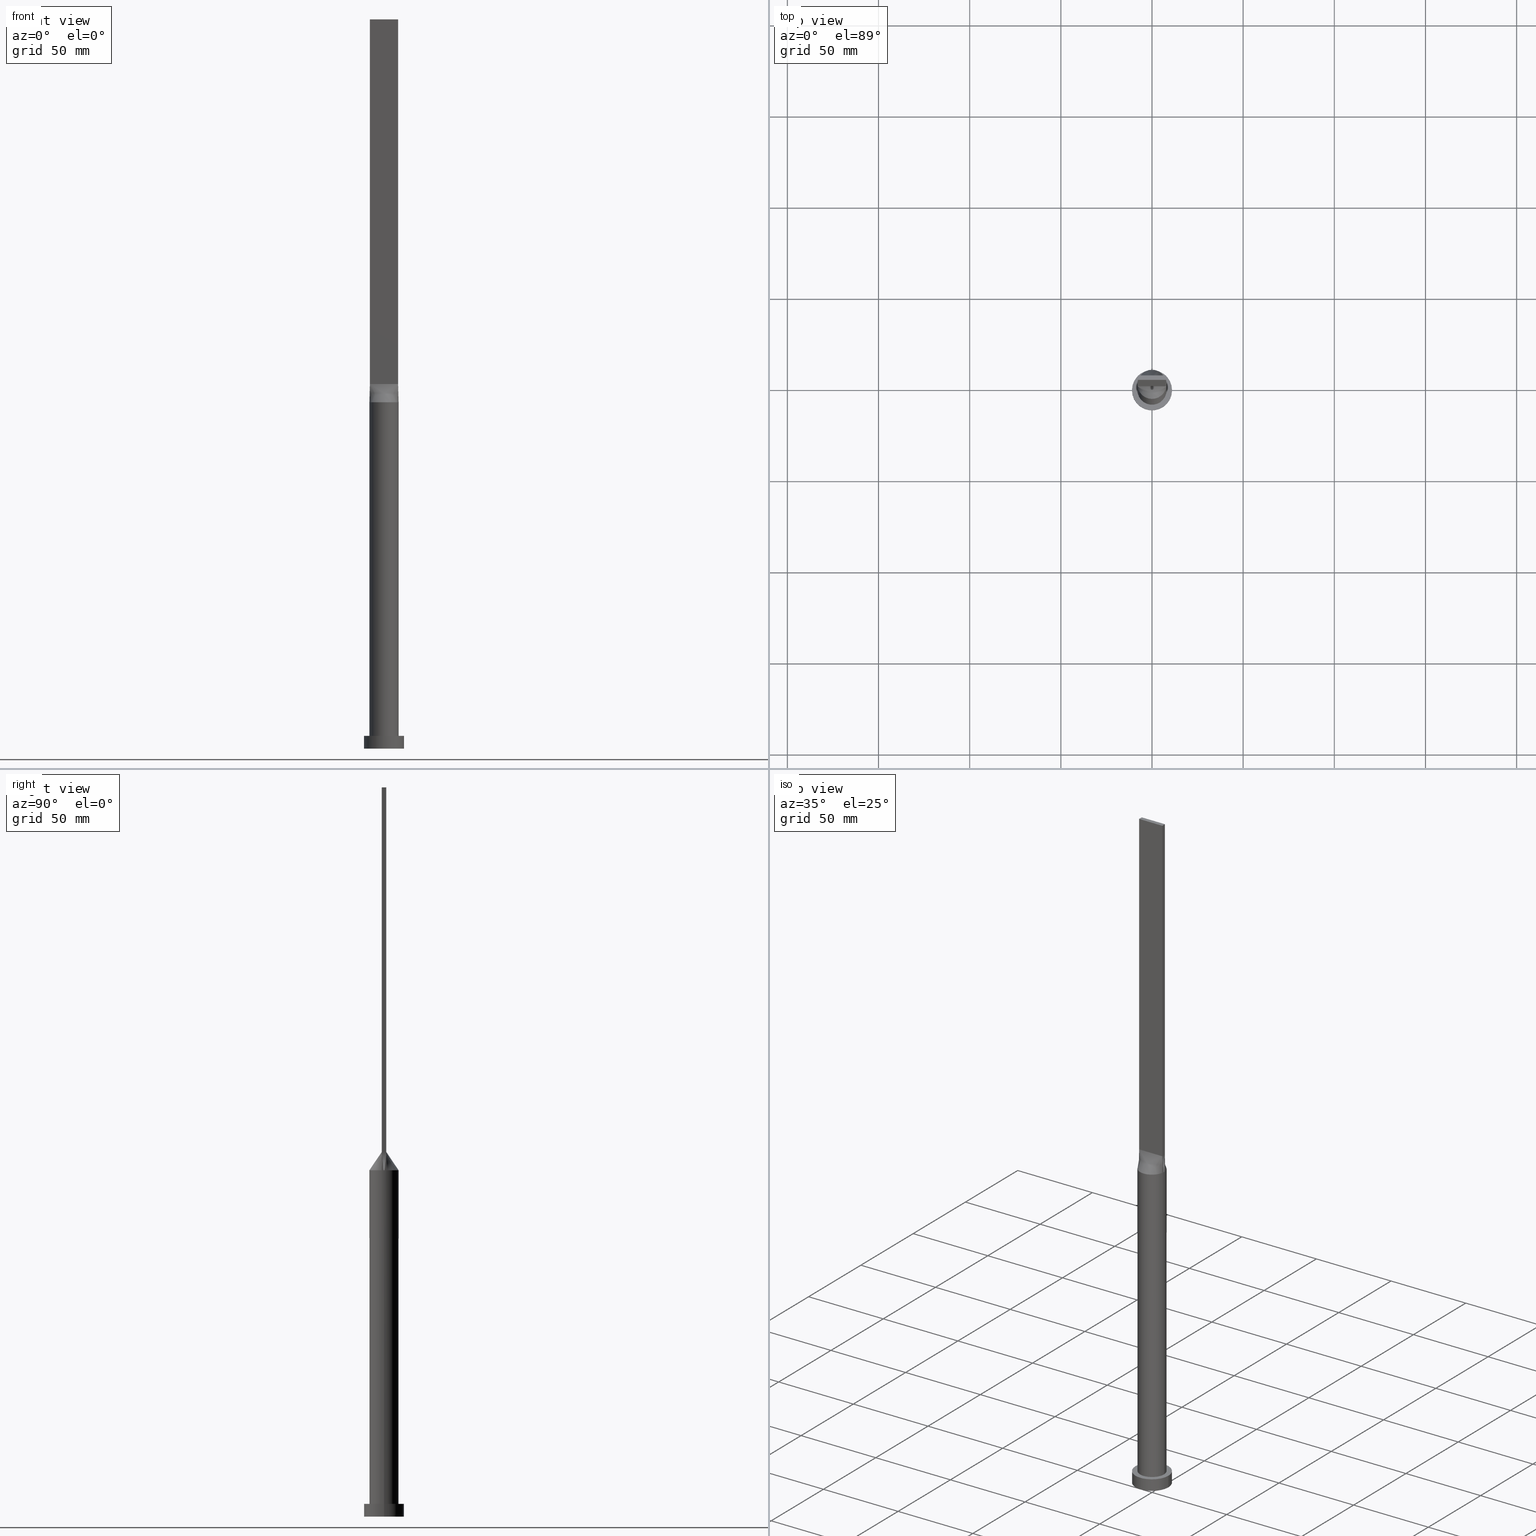
[diagram: canonical four-view strip — front | top / right | iso, engineering-drawing reading convention]
A machine part, canonical four-view strip (front | top / right | iso — engineering-drawing reading convention). The complete STEP part file that produces these views, byte-faithful:
ISO-10303-21;
HEADER;
FILE_DESCRIPTION (( 'STEP AP203' ),
    '1' );
FILE_NAME ('b073.STEP',
    '2023-02-13T08:47:54',
    ( '' ),
    ( '' ),
    'SwSTEP 2.0',
    'SolidWorks 2019',
    '' );
FILE_SCHEMA (( 'CONFIG_CONTROL_DESIGN' ));
ENDSEC;

DATA;
#1 = DIRECTION ( 'NONE',  ( 0.000000000000000000, 0.000000000000000000, 1.000000000000000000 ) ) ;
#2 = CARTESIAN_POINT ( 'NONE',  ( 7.750000000000000000, 0.8333333333333321491, 200.0000000000000000 ) ) ;
#3 = CARTESIAN_POINT ( 'NONE',  ( 8.000000000000000000, 9.797174393178825657E-16, 190.0000000000000000 ) ) ;
#4 = ORIENTED_EDGE ( 'NONE', *, *, #300, .F. ) ;
#5 = CARTESIAN_POINT ( 'NONE',  ( 7.750000000000000000, -1.249999999999999778, 200.0000000000000000 ) ) ;
#6 = ORGANIZATION ( 'NEUR�EN�', 'NEUR�EN�', '' ) ;
#7 = PLANE ( 'NONE',  #574 ) ;
#8 = CARTESIAN_POINT ( 'NONE',  ( -11.00000000000000000, 0.000000000000000000, 0.000000000000000000 ) ) ;
#9 = CC_DESIGN_PERSON_AND_ORGANIZATION_ASSIGNMENT ( #498, #637, ( #45 ) ) ;
#10 = ORIENTED_EDGE ( 'NONE', *, *, #449, .T. ) ;
#11 = VECTOR ( 'NONE', #56, 1000.000000000000227 ) ;
#12 = CARTESIAN_POINT ( 'NONE',  ( -6.458333333333333037, -1.249999999999998890, 200.0000000000000000 ) ) ;
#13 = CIRCLE ( 'NONE', #484, 11.00000000000000000 ) ;
#14 = EDGE_LOOP ( 'NONE', ( #358, #65, #610, #318 ) ) ;
#15 = CARTESIAN_POINT ( 'NONE',  ( -0.6458333333333330373, -1.249999999999999112, 200.0000000000000000 ) ) ;
#16 = ORIENTED_EDGE ( 'NONE', *, *, #263, .T. ) ;
#17 = CARTESIAN_POINT ( 'NONE',  ( 4.217034177653714799, 6.817775467282659818, 189.9999999999999716 ) ) ;
#18 = ORIENTED_EDGE ( 'NONE', *, *, #86, .T. ) ;
#19 = B_SPLINE_CURVE_WITH_KNOTS ( 'NONE', 3,
 ( #309, #627, #313, #260, #128, #183, #77, #70, #468, #17, #480, #378, #28, #382, #617, #222, #522, #212, #264, #22, #624, #216, #418, #370, #316, #196, #48, #343, #391, #443 ),
 .UNSPECIFIED., .F., .F.,
 ( 4, 2, 2, 2, 2, 2, 2, 2, 2, 2, 2, 2, 2, 2, 4 ),
 ( 0.000000000000000000, 0.1250000000000000000, 0.1875000000000000000, 0.2500000000000000000, 0.3125000000000000000, 0.3750000000000000000, 0.4375000000000000000, 0.5000000000000000000, 0.5625000000000000000, 0.6250000000000000000, 0.6875000000000000000, 0.7500000000000000000, 0.8125000000000000000, 0.8750000000000000000, 1.000000000000000000 ),
 .UNSPECIFIED. ) ;
#20 = DIRECTION ( 'NONE',  ( -0.01479123618026849905, -0.002385683254881877744, 0.9998877576246579801 ) ) ;
#21 = CLOSED_SHELL ( 'NONE', ( #427, #163, #410, #295, #107, #118, #587, #577, #621, #513, #292, #121, #611, #172, #345 ) ) ;
#22 = CARTESIAN_POINT ( 'NONE',  ( -3.754841939107308235, 7.084924699190308317, 189.9999999999999716 ) ) ;
#23 = VERTEX_POINT ( 'NONE', #130 ) ;
#24 = CARTESIAN_POINT ( 'NONE',  ( -7.750000000000000000, -0.4166666666666646868, 200.0000000000000000 ) ) ;
#25 = LINE ( 'NONE', #531, #605 ) ;
#26 = EDGE_LOOP ( 'NONE', ( #265, #361, #161, #630, #455, #367 ) ) ;
#27 = DIRECTION ( 'NONE',  ( 5.595882180570345426E-17, 1.000000000000000000, -0.000000000000000000 ) ) ;
#28 = CARTESIAN_POINT ( 'NONE',  ( 2.232993174580878204, 7.702525839322459156, 190.0000000000000568 ) ) ;
#29 = ORIENTED_EDGE ( 'NONE', *, *, #497, .T. ) ;
#30 = CARTESIAN_POINT ( 'NONE',  ( 5.166666666666668739, -1.249999999999999778, 200.0000000000000568 ) ) ;
#31 = LINE ( 'NONE', #373, #474 ) ;
#32 = CIRCLE ( 'NONE', #546, 8.000000000000000000 ) ;
#33 = EDGE_LOOP ( 'NONE', ( #434, #523, #618, #492, #53 ) ) ;
#34 = COORDINATED_UNIVERSAL_TIME_OFFSET ( 1, 0, .AHEAD. ) ;
#35 = CARTESIAN_POINT ( 'NONE',  ( -2.762781956618985291, 7.527418670504290255, 190.0000000000000284 ) ) ;
#36 = DIRECTION ( 'NONE',  ( -0.000000000000000000, -0.000000000000000000, -1.000000000000000000 ) ) ;
#37 = APPROVAL_STATUS ( 'not_yet_approved' ) ;
#38 = CARTESIAN_POINT ( 'NONE',  ( -7.897940634034629426, -1.273861398824698732, 190.0000000000000000 ) ) ;
#39 = LINE ( 'NONE', #383, #596 ) ;
#40 = CALENDAR_DATE ( 2023, 13, 2 ) ;
#41 = CARTESIAN_POINT ( 'NONE',  ( 1.614583333333327264, 1.250000000000000222, 200.0000000000000000 ) ) ;
#42 = LINE ( 'NONE', #296, #224 ) ;
#43 = PERSON_AND_ORGANIZATION_ROLE ( 'creator' ) ;
#44 = CARTESIAN_POINT ( 'NONE',  ( -5.434261125067506804, 5.890653037160105576, 190.0000000000000284 ) ) ;
#45 = PRODUCT_DEFINITION ( 'NEZN�M�', '', #151, #397 ) ;
#46 = FACE_OUTER_BOUND ( 'NONE', #122, .T. ) ;
#47 = ORIENTED_EDGE ( 'NONE', *, *, #355, .T. ) ;
#48 = CARTESIAN_POINT ( 'NONE',  ( -7.088837466865208548, 3.729743859143727747, 190.0000000000000284 ) ) ;
#49 = CARTESIAN_POINT ( 'NONE',  ( 0.000000000000000000, 0.000000000000000000, 7.000000000000000000 ) ) ;
#50 = ORIENTED_EDGE ( 'NONE', *, *, #155, .T. ) ;
#51 = CARTESIAN_POINT ( 'NONE',  ( -6.883287261198673512, -4.100742229440781372, 190.0000000000000853 ) ) ;
#52 = CARTESIAN_POINT ( 'NONE',  ( 11.00000000000000000, 1.347111479062088405E-15, 7.000000000000000000 ) ) ;
#53 = ORIENTED_EDGE ( 'NONE', *, *, #263, .F. ) ;
#54 = AXIS2_PLACEMENT_3D ( 'NONE', #225, #66, #423 ) ;
#55 = CARTESIAN_POINT ( 'NONE',  ( -7.897928965701177084, -1.273859510596962119, 190.0000000000000000 ) ) ;
#56 = DIRECTION ( 'NONE',  ( 0.01479123618026849905, -0.002385683254881834810, 0.9998877576246579801 ) ) ;
#57 = ORIENTED_EDGE ( 'NONE', *, *, #236, .T. ) ;
#58 = CARTESIAN_POINT ( 'NONE',  ( -7.088837466865212988, -3.729743859143725526, 190.0000000000000853 ) ) ;
#59 = APPROVAL_PERSON_ORGANIZATION ( #631, #433, #339 ) ;
#60 = CARTESIAN_POINT ( 'NONE',  ( 7.750000000000000000, -0.4166666666666684060, 200.0000000000000000 ) ) ;
#61 = VERTEX_POINT ( 'NONE', #78 ) ;
#62 = AXIS2_PLACEMENT_3D ( 'NONE', #582, #286, #176 ) ;
#63 = CARTESIAN_POINT ( 'NONE',  ( -4.217034177653715687, -6.817775467282659818, 189.9999999999999716 ) ) ;
#64 = EDGE_CURVE ( 'NONE', #579, #628, #206, .T. ) ;
#65 = ORIENTED_EDGE ( 'NONE', *, *, #566, .F. ) ;
#66 = DIRECTION ( 'NONE',  ( 0.000000000000000000, 0.000000000000000000, 1.000000000000000000 ) ) ;
#67 = APPROVAL_PERSON_ORGANIZATION ( #185, #632, #277 ) ;
#68 = ORIENTED_EDGE ( 'NONE', *, *, #379, .F. ) ;
#69 = CARTESIAN_POINT ( 'NONE',  ( -7.750000000000000000, 1.250000000000000222, 200.0000000000000000 ) ) ;
#70 = CARTESIAN_POINT ( 'NONE',  ( 5.434261125067508580, 5.890653037160103800, 190.0000000000000284 ) ) ;
#71 = ORIENTED_EDGE ( 'NONE', *, *, #335, .T. ) ;
#72 = CARTESIAN_POINT ( 'NONE',  ( -7.999348843997323044, 0.4273286734864477077, 190.0000000000000000 ) ) ;
#73 = VECTOR ( 'NONE', #98, 1000.000000000000000 ) ;
#74 = DIRECTION ( 'NONE',  ( -0.000000000000000000, -0.000000000000000000, -1.000000000000000000 ) ) ;
#75 = ORIENTED_EDGE ( 'NONE', *, *, #608, .F. ) ;
#76 = CARTESIAN_POINT ( 'NONE',  ( 7.897928965701177084, -1.273859510596963451, 190.0000000000000000 ) ) ;
#77 = CARTESIAN_POINT ( 'NONE',  ( 6.100409024666552327, 5.197691498289451317, 190.0000000000000284 ) ) ;
#78 = CARTESIAN_POINT ( 'NONE',  ( 7.750000000000000000, -1.249999999999999778, 200.0000000000000000 ) ) ;
#79 = CARTESIAN_POINT ( 'NONE',  ( 7.104166666666667851, -1.249999999999999778, 200.0000000000000000 ) ) ;
#80 = EDGE_CURVE ( 'NONE', #258, #504, #584, .T. ) ;
#81 = DIRECTION ( 'NONE',  ( -1.000000000000000000, 0.000000000000000000, 0.000000000000000000 ) ) ;
#82 = FACE_OUTER_BOUND ( 'NONE', #564, .T. ) ;
#83 = CARTESIAN_POINT ( 'NONE',  ( 3.552083333333327708, 1.250000000000000222, 200.0000000000000284 ) ) ;
#84 = CIRCLE ( 'NONE', #54, 8.000000000000000000 ) ;
#85 = DIRECTION ( 'NONE',  ( 0.000000000000000000, 0.000000000000000000, 1.000000000000000000 ) ) ;
#86 = EDGE_CURVE ( 'NONE', #220, #23, #39, .T. ) ;
#87 = CARTESIAN_POINT ( 'NONE',  ( 7.597511974649646227, 2.632154125590748350, 190.0000000000000000 ) ) ;
#88 = CARTESIAN_POINT ( 'NONE',  ( 0.000000000000000000, 0.000000000000000000, 190.0000000000000000 ) ) ;
#89 = LOCAL_TIME ( 9, 47, 54.00000000000000000, #235 ) ;
#90 = CARTESIAN_POINT ( 'NONE',  ( 0.3229166666666602459, 1.250000000000000444, 200.0000000000000000 ) ) ;
#91 = CARTESIAN_POINT ( 'NONE',  ( -7.750000000000000000, 1.250000000000000222, 400.0000000000000000 ) ) ;
#92 = PERSON_AND_ORGANIZATION ( #304, #6 ) ;
#93 = CARTESIAN_POINT ( 'NONE',  ( 6.458333333333331261, 1.250000000000000222, 200.0000000000000000 ) ) ;
#94 = CARTESIAN_POINT ( 'NONE',  ( 7.897952327758385849, -1.273863293446191536, 190.0000000000000000 ) ) ;
#95 = CIRCLE ( 'NONE', #489, 8.000000000000000000 ) ;
#96 = COORDINATED_UNIVERSAL_TIME_OFFSET ( 1, 0, .AHEAD. ) ;
#97 = CARTESIAN_POINT ( 'NONE',  ( 5.056714967162550423, 6.220536417275850383, 190.0000000000000284 ) ) ;
#98 = DIRECTION ( 'NONE',  ( 1.000000000000000000, -5.595882180570345426E-17, 0.000000000000000000 ) ) ;
#99 = ORIENTED_EDGE ( 'NONE', *, *, #153, .T. ) ;
#100 = CARTESIAN_POINT ( 'NONE',  ( -2.260416666666666519, -1.249999999999999112, 200.0000000000000000 ) ) ;
#101 = DIRECTION ( 'NONE',  ( 0.000000000000000000, 0.000000000000000000, 1.000000000000000000 ) ) ;
#102 = EDGE_CURVE ( 'NONE', #529, #371, #376, .T. ) ;
#103 = VERTEX_POINT ( 'NONE', #184 ) ;
#104 = CARTESIAN_POINT ( 'NONE',  ( -5.434261125067508580, -5.890653037160103800, 190.0000000000000284 ) ) ;
#105 = LINE ( 'NONE', #249, #509 ) ;
#106 = CARTESIAN_POINT ( 'NONE',  ( -1.135368687448996994, -7.938897956688654389, 190.0000000000000284 ) ) ;
#107 = ADVANCED_FACE ( 'NONE', ( #441 ), #274, .F. ) ;
#108 = CARTESIAN_POINT ( 'NONE',  ( 7.965542217898607724, 0.8546573469728929728, 190.0000000000000000 ) ) ;
#109 = ORIENTED_EDGE ( 'NONE', *, *, #392, .F. ) ;
#110 = CARTESIAN_POINT ( 'NONE',  ( -4.197916666666666963, -1.249999999999998890, 200.0000000000000284 ) ) ;
#111 = ORIENTED_EDGE ( 'NONE', *, *, #422, .F. ) ;
#112 = VECTOR ( 'NONE', #553, 1000.000000000000000 ) ;
#113 = DIRECTION ( 'NONE',  ( 1.000000000000000000, 0.000000000000000000, 0.000000000000000000 ) ) ;
#114 = ORIENTED_EDGE ( 'NONE', *, *, #64, .F. ) ;
#115 = CARTESIAN_POINT ( 'NONE',  ( 0.000000000000000000, 0.000000000000000000, 0.000000000000000000 ) ) ;
#116 = CARTESIAN_POINT ( 'NONE',  ( 7.750000000000000000, 1.250000000000000222, 400.0000000000000000 ) ) ;
#117 = VERTEX_POINT ( 'NONE', #622 ) ;
#118 = ADVANCED_FACE ( 'NONE', ( #82 ), #187, .T. ) ;
#119 = LINE ( 'NONE', #425, #312 ) ;
#120 = DIRECTION ( 'NONE',  ( 1.000000000000000000, 0.000000000000000000, 0.000000000000000000 ) ) ;
#121 = ADVANCED_FACE ( 'NONE', ( #338 ), #134, .F. ) ;
#122 = EDGE_LOOP ( 'NONE', ( #261, #413, #57, #18 ) ) ;
#123 = CARTESIAN_POINT ( 'NONE',  ( 7.088837466865208548, -3.729743859143727747, 190.0000000000000284 ) ) ;
#124 = DIRECTION ( 'NONE',  ( -0.01479123618026849905, 0.002385683254881964914, 0.9998877576246579801 ) ) ;
#125 = EDGE_CURVE ( 'NONE', #371, #326, #481, .T. ) ;
#126 = DIRECTION ( 'NONE',  ( 1.000000000000000000, 0.000000000000000000, 0.000000000000000000 ) ) ;
#127 = CARTESIAN_POINT ( 'NONE',  ( 2.260416666666666519, -1.249999999999999334, 200.0000000000000284 ) ) ;
#128 = CARTESIAN_POINT ( 'NONE',  ( 6.883287261198673512, 4.100742229440780484, 190.0000000000000853 ) ) ;
#129 = B_SPLINE_SURFACE_WITH_KNOTS ( 'NONE', 3, 1, ( 
 ( #347, #5 ),
 ( #254, #350 ),
 ( #409, #60 ),
 ( #560, #460 ),
 ( #108, #2 ),
 ( #306, #597 ) ),
 .UNSPECIFIED., .F., .F., .F.,
 ( 4, 2, 4 ),
 ( 2, 2 ),
 ( 0.000000000000000000, 0.5000000000000000000, 1.000000000000000000 ),
 ( 0.000000000000000000, 1.000000000000000000 ),
 .UNSPECIFIED. ) ;
#130 = CARTESIAN_POINT ( 'NONE',  ( 7.750000000000000000, 1.250000000000000222, 400.0000000000000000 ) ) ;
#131 = PERSON_AND_ORGANIZATION_ROLE ( 'classification_officer' ) ;
#132 = CC_DESIGN_DATE_AND_TIME_ASSIGNMENT ( #589, #228, ( #337 ) ) ;
#133 = CARTESIAN_POINT ( 'NONE',  ( 2.583333333333327264, 1.250000000000000222, 200.0000000000000000 ) ) ;
#134 = PLANE ( 'NONE',  #473 ) ;
#135 = MECHANICAL_CONTEXT ( 'NONE', #469, 'mechanical' ) ;
#136 = CARTESIAN_POINT ( 'NONE',  ( -6.389139692789916225, 4.834731051311460526, 190.0000000000000568 ) ) ;
#137 = CARTESIAN_POINT ( 'NONE',  ( 0.000000000000000000, 0.000000000000000000, 7.000000000000000000 ) ) ;
#138 = CARTESIAN_POINT ( 'NONE',  ( 2.260416666666660745, 1.250000000000000222, 200.0000000000000000 ) ) ;
#139 = DIRECTION ( 'NONE',  ( 1.000000000000000000, 0.000000000000000000, 0.000000000000000000 ) ) ;
#140 = LOCAL_TIME ( 9, 47, 54.00000000000000000, #96 ) ;
#141 = CARTESIAN_POINT ( 'NONE',  ( 3.229166666666661190, 1.250000000000000222, 200.0000000000000000 ) ) ;
#142 = LINE ( 'NONE', #447, #363 ) ;
#143 = DATE_AND_TIME ( #381, #89 ) ;
#144 = CARTESIAN_POINT ( 'NONE',  ( 7.897928965701177084, 1.273859510596963451, 190.0000000000000000 ) ) ;
#145 = DIRECTION ( 'NONE',  ( -0.000000000000000000, -0.000000000000000000, -1.000000000000000000 ) ) ;
#146 = AXIS2_PLACEMENT_3D ( 'NONE', #567, #74, #483 ) ;
#147 = ORIENTED_EDGE ( 'NONE', *, *, #353, .T. ) ;
#148 = CARTESIAN_POINT ( 'NONE',  ( -2.583333333333333481, -1.249999999999998890, 200.0000000000000000 ) ) ;
#149 = DIRECTION ( 'NONE',  ( 1.000000000000000000, 0.000000000000000000, -0.000000000000000000 ) ) ;
#150 = VERTEX_POINT ( 'NONE', #231 ) ;
#151 = PRODUCT_DEFINITION_FORMATION_WITH_SPECIFIED_SOURCE ( 'LIBOVOLN�', '', #639, .NOT_KNOWN. ) ;
#152 = CARTESIAN_POINT ( 'NONE',  ( -4.520833333333333037, -1.249999999999998890, 200.0000000000000000 ) ) ;
#153 = EDGE_CURVE ( 'NONE', #308, #207, #429, .T. ) ;
#154 = LINE ( 'NONE', #52, #487 ) ;
#155 = EDGE_CURVE ( 'NONE', #628, #579, #430, .T. ) ;
#156 = EDGE_LOOP ( 'NONE', ( #211, #71, #606, #109, #364 ) ) ;
#157 = CARTESIAN_POINT ( 'NONE',  ( 1.135368687448994107, -7.938897956688654389, 190.0000000000000853 ) ) ;
#158 = DIRECTION ( 'NONE',  ( 1.000000000000000000, 0.000000000000000000, -0.000000000000000000 ) ) ;
#159 = CARTESIAN_POINT ( 'NONE',  ( -7.793128424795161102, 1.923622864214273198, 190.0000000000000284 ) ) ;
#160 = CC_DESIGN_PERSON_AND_ORGANIZATION_ASSIGNMENT ( #282, #131, ( #337 ) ) ;
#161 = ORIENTED_EDGE ( 'NONE', *, *, #323, .T. ) ;
#162 = FACE_OUTER_BOUND ( 'NONE', #310, .T. ) ;
#163 = ADVANCED_FACE ( 'NONE', ( #438 ), #535, .T. ) ;
#164 = ORIENTED_EDGE ( 'NONE', *, *, #300, .T. ) ;
#165 = CARTESIAN_POINT ( 'NONE',  ( 11.00000000000000000, 1.347111479062088405E-15, 0.000000000000000000 ) ) ;
#166 = ORIENTED_EDGE ( 'NONE', *, *, #463, .F. ) ;
#167 = VECTOR ( 'NONE', #124, 1000.000000000000227 ) ;
#168 = FACE_OUTER_BOUND ( 'NONE', #394, .T. ) ;
#169 = EDGE_LOOP ( 'NONE', ( #609, #568, #419, #475 ) ) ;
#170 = CARTESIAN_POINT ( 'NONE',  ( 4.520833333333333925, -1.249999999999999778, 200.0000000000000568 ) ) ;
#171 = LINE ( 'NONE', #116, #536 ) ;
#172 = ADVANCED_FACE ( 'NONE', ( #234 ), #7, .F. ) ;
#173 = VERTEX_POINT ( 'NONE', #94 ) ;
#174 = CARTESIAN_POINT ( 'NONE',  ( 5.056714967162549534, -6.220536417275852159, 189.9999999999999716 ) ) ;
#175 = CYLINDRICAL_SURFACE ( 'NONE', #200, 8.000000000000000000 ) ;
#176 = DIRECTION ( 'NONE',  ( -1.000000000000000000, 0.000000000000000000, 0.000000000000000000 ) ) ;
#177 = CARTESIAN_POINT ( 'NONE',  ( 4.197916666666667851, -1.249999999999999778, 200.0000000000000568 ) ) ;
#178 = AXIS2_PLACEMENT_3D ( 'NONE', #49, #555, #113 ) ;
#179 = CARTESIAN_POINT ( 'NONE',  ( -7.750000000000000000, 1.250000000000000222, 400.0000000000000000 ) ) ;
#180 = CC_DESIGN_DATE_AND_TIME_ASSIGNMENT ( #195, #626, ( #45 ) ) ;
#181 = CARTESIAN_POINT ( 'NONE',  ( 0.000000000000000000, 0.000000000000000000, 0.000000000000000000 ) ) ;
#182 = APPROVAL_DATE_TIME ( #331, #632 ) ;
#183 = CARTESIAN_POINT ( 'NONE',  ( 6.389139692789920666, 4.834731051311459638, 190.0000000000000853 ) ) ;
#184 = CARTESIAN_POINT ( 'NONE',  ( -11.00000000000000000, 0.000000000000000000, 7.000000000000000000 ) ) ;
#185 = PERSON_AND_ORGANIZATION ( #304, #6 ) ;
#186 = CARTESIAN_POINT ( 'NONE',  ( 4.520833333333327708, 1.250000000000000222, 200.0000000000000000 ) ) ;
#187 = CYLINDRICAL_SURFACE ( 'NONE', #62, 8.000000000000000000 ) ;
#188 = SHAPE_DEFINITION_REPRESENTATION ( #428, #573 ) ;
#189 = CARTESIAN_POINT ( 'NONE',  ( 2.232993174580878204, 7.702525839322459156, 190.0000000000000568 ) ) ;
#190 = VECTOR ( 'NONE', #625, 1000.000000000000000 ) ;
#191 = ORIENTED_EDGE ( 'NONE', *, *, #272, .F. ) ;
#192 = PERSON_AND_ORGANIZATION ( #304, #6 ) ;
#193 = CARTESIAN_POINT ( 'NONE',  ( -0.6458333333333395876, 1.250000000000000222, 200.0000000000000000 ) ) ;
#194 = CARTESIAN_POINT ( 'NONE',  ( 0.000000000000000000, 0.000000000000000000, 400.0000000000000000 ) ) ;
#195 = DATE_AND_TIME ( #431, #140 ) ;
#196 = CARTESIAN_POINT ( 'NONE',  ( -6.883287261198669960, 4.100742229440782260, 190.0000000000000568 ) ) ;
#197 = LINE ( 'NONE', #544, #112 ) ;
#198 = CARTESIAN_POINT ( 'NONE',  ( -7.088837466865208548, 3.729743859143727747, 190.0000000000000284 ) ) ;
#199 = DIRECTION ( 'NONE',  ( -0.000000000000000000, -0.000000000000000000, -1.000000000000000000 ) ) ;
#200 = AXIS2_PLACEMENT_3D ( 'NONE', #268, #472, #81 ) ;
#201 = LINE ( 'NONE', #508, #359 ) ;
#202 = DIRECTION ( 'NONE',  ( 0.000000000000000000, -1.000000000000000000, 0.000000000000000000 ) ) ;
#203 = CARTESIAN_POINT ( 'NONE',  ( -2.232993174580879092, -7.702525839322459156, 190.0000000000000568 ) ) ;
#204 = CARTESIAN_POINT ( 'NONE',  ( -7.750000000000000000, 1.250000000000000222, 200.0000000000000000 ) ) ;
#205 = CARTESIAN_POINT ( 'NONE',  ( 2.232993174580876428, -7.702525839322460044, 190.0000000000000284 ) ) ;
#206 = CIRCLE ( 'NONE', #354, 11.00000000000000000 ) ;
#207 = VERTEX_POINT ( 'NONE', #204 ) ;
#208 = CARTESIAN_POINT ( 'NONE',  ( 0.5677556330368840332, -7.999999999999998224, 189.9999999999999432 ) ) ;
#209 = ORIENTED_EDGE ( 'NONE', *, *, #323, .F. ) ;
#210 = CARTESIAN_POINT ( 'NONE',  ( 0.3229166666666669627, -1.249999999999999112, 200.0000000000000000 ) ) ;
#211 = ORIENTED_EDGE ( 'NONE', *, *, #379, .T. ) ;
#212 = CARTESIAN_POINT ( 'NONE',  ( -2.232993174580875539, 7.702525839322460044, 190.0000000000000284 ) ) ;
#213 = ORIENTED_EDGE ( 'NONE', *, *, #153, .F. ) ;
#214 = APPROVAL ( #37, 'NEUR�EN�' ) ;
#215 = FACE_OUTER_BOUND ( 'NONE', #33, .T. ) ;
#216 = CARTESIAN_POINT ( 'NONE',  ( -5.056714967162549534, 6.220536417275851271, 189.9999999999999716 ) ) ;
#217 = EDGE_LOOP ( 'NONE', ( #464, #47, #50, #191 ) ) ;
#218 = CARTESIAN_POINT ( 'NONE',  ( -7.750000000000000000, -1.249999999999998890, 200.0000000000000000 ) ) ;
#219 = DIRECTION ( 'NONE',  ( -0.000000000000000000, 1.000000000000000000, -0.000000000000000000 ) ) ;
#220 = VERTEX_POINT ( 'NONE', #510 ) ;
#221 = CARTESIAN_POINT ( 'NONE',  ( 2.583333333333333481, -1.249999999999999556, 200.0000000000000568 ) ) ;
#222 = CARTESIAN_POINT ( 'NONE',  ( -0.5677556330368852544, 7.999999999999998224, 189.9999999999999432 ) ) ;
#223 = CARTESIAN_POINT ( 'NONE',  ( -8.000000000000000000, 0.000000000000000000, 190.0000000000000000 ) ) ;
#224 = VECTOR ( 'NONE', #199, 1000.000000000000000 ) ;
#225 = CARTESIAN_POINT ( 'NONE',  ( 0.000000000000000000, 0.000000000000000000, 190.0000000000000000 ) ) ;
#226 = EDGE_CURVE ( 'NONE', #415, #515, #640, .T. ) ;
#227 = ORIENTED_EDGE ( 'NONE', *, *, #374, .F. ) ;
#228 = DATE_TIME_ROLE ( 'classification_date' ) ;
#229 = CARTESIAN_POINT ( 'NONE',  ( 1.291666666666660523, 1.250000000000000222, 200.0000000000000000 ) ) ;
#230 = AXIS2_PLACEMENT_3D ( 'NONE', #115, #521, #395 ) ;
#231 = CARTESIAN_POINT ( 'NONE',  ( 11.00000000000000000, 1.347111479062088405E-15, 7.000000000000000000 ) ) ;
#232 = CALENDAR_DATE ( 2023, 13, 2 ) ;
#233 = CARTESIAN_POINT ( 'NONE',  ( 5.489583333333329485, 1.250000000000000222, 200.0000000000000000 ) ) ;
#234 = FACE_OUTER_BOUND ( 'NONE', #169, .T. ) ;
#235 = COORDINATED_UNIVERSAL_TIME_OFFSET ( 1, 0, .AHEAD. ) ;
#236 = EDGE_CURVE ( 'NONE', #256, #220, #398, .T. ) ;
#237 = CARTESIAN_POINT ( 'NONE',  ( 6.883287261198673512, 4.100742229440780484, 190.0000000000000853 ) ) ;
#238 = VECTOR ( 'NONE', #613, 1000.000000000000000 ) ;
#239 = DIRECTION ( 'NONE',  ( 0.000000000000000000, -0.000000000000000000, -1.000000000000000000 ) ) ;
#240 = PERSON_AND_ORGANIZATION ( #304, #6 ) ;
#241 = CARTESIAN_POINT ( 'NONE',  ( 7.088837466865212988, 3.729743859143727303, 190.0000000000000853 ) ) ;
#242 = DIRECTION ( 'NONE',  ( 0.000000000000000000, -1.000000000000000000, 0.000000000000000000 ) ) ;
#243 = CC_DESIGN_SECURITY_CLASSIFICATION ( #337, ( #151 ) ) ;
#244 = B_SPLINE_SURFACE_WITH_KNOTS ( 'NONE', 3, 1, ( 
 ( #315, #69 ),
 ( #372, #524 ),
 ( #72, #267 ),
 ( #576, #24 ),
 ( #623, #324 ),
 ( #612, #218 ) ),
 .UNSPECIFIED., .F., .F., .F.,
 ( 4, 2, 4 ),
 ( 2, 2 ),
 ( 0.000000000000000000, 0.5000000000000000000, 1.000000000000000000 ),
 ( 0.000000000000000000, 1.000000000000000000 ),
 .UNSPECIFIED. ) ;
#245 = CARTESIAN_POINT ( 'NONE',  ( -6.100409024666552327, 5.197691498289451317, 189.9999999999999432 ) ) ;
#246 = CARTESIAN_POINT ( 'NONE',  ( -7.750000000000000000, -1.249999999999998890, 400.0000000000000000 ) ) ;
#247 = CARTESIAN_POINT ( 'NONE',  ( -5.056714967162550423, -6.220536417275850383, 190.0000000000000284 ) ) ;
#248 = AXIS2_PLACEMENT_3D ( 'NONE', #181, #330, #380 ) ;
#249 = CARTESIAN_POINT ( 'NONE',  ( 7.750000000000000000, 1.250000000000000222, 400.0000000000000000 ) ) ;
#250 = VERTEX_POINT ( 'NONE', #405 ) ;
#251 = CARTESIAN_POINT ( 'NONE',  ( -3.754841939107310456, -7.084924699190306541, 190.0000000000000284 ) ) ;
#252 = DIRECTION ( 'NONE',  ( 1.000000000000000000, 0.000000000000000000, 0.000000000000000000 ) ) ;
#253 = CARTESIAN_POINT ( 'NONE',  ( 0.6458333333333335924, -1.249999999999999112, 200.0000000000000000 ) ) ;
#254 = CARTESIAN_POINT ( 'NONE',  ( 7.965542217898607724, -0.8546573469728951933, 190.0000000000000000 ) ) ;
#255 = AXIS2_PLACEMENT_3D ( 'NONE', #194, #101, #149 ) ;
#256 = VERTEX_POINT ( 'NONE', #246 ) ;
#257 = CARTESIAN_POINT ( 'NONE',  ( -5.489583333333332149, -1.249999999999998890, 200.0000000000000000 ) ) ;
#258 = VERTEX_POINT ( 'NONE', #293 ) ;
#259 = APPLICATION_PROTOCOL_DEFINITION ( 'international standard', 'config_control_design', 1994, #469 ) ;
#260 = CARTESIAN_POINT ( 'NONE',  ( 7.088837466865212988, 3.729743859143727303, 190.0000000000000853 ) ) ;
#261 = ORIENTED_EDGE ( 'NONE', *, *, #374, .T. ) ;
#262 = CARTESIAN_POINT ( 'NONE',  ( 3.754841939107309123, -7.084924699190308317, 189.9999999999999716 ) ) ;
#263 = EDGE_CURVE ( 'NONE', #529, #207, #496, .T. ) ;
#264 = CARTESIAN_POINT ( 'NONE',  ( -2.762781956618985291, 7.527418670504290255, 190.0000000000000284 ) ) ;
#265 = ORIENTED_EDGE ( 'NONE', *, *, #335, .F. ) ;
#266 = AXIS2_PLACEMENT_3D ( 'NONE', #457, #636, #594 ) ;
#267 = CARTESIAN_POINT ( 'NONE',  ( -7.750000000000000000, 0.4166666666666682950, 200.0000000000000000 ) ) ;
#268 = CARTESIAN_POINT ( 'NONE',  ( 0.000000000000000000, 0.000000000000000000, 190.0000000000000000 ) ) ;
#269 = MANIFOLD_SOLID_BREP ( 'P�idat vysunut�m5', #21 ) ;
#270 = ORIENTED_EDGE ( 'NONE', *, *, #407, .F. ) ;
#271 = PLANE ( 'NONE',  #552 ) ;
#272 = EDGE_CURVE ( 'NONE', #103, #579, #42, .T. ) ;
#273 = LINE ( 'NONE', #528, #319 ) ;
#274 = PLANE ( 'NONE',  #386 ) ;
#275 = CARTESIAN_POINT ( 'NONE',  ( 0.000000000000000000, 0.000000000000000000, 7.000000000000000000 ) ) ;
#276 = ORIENTED_EDGE ( 'NONE', *, *, #272, .T. ) ;
#277 = APPROVAL_ROLE ( '' ) ;
#278 = VECTOR ( 'NONE', #36, 1000.000000000000000 ) ;
#279 = CARTESIAN_POINT ( 'NONE',  ( 5.434261125067508580, 5.890653037160103800, 190.0000000000000284 ) ) ;
#280 = CIRCLE ( 'NONE', #387, 8.000000000000000000 ) ;
#281 = DIRECTION ( 'NONE',  ( -0.000000000000000000, -0.000000000000000000, -1.000000000000000000 ) ) ;
#282 = PERSON_AND_ORGANIZATION ( #304, #6 ) ;
#283 = CARTESIAN_POINT ( 'NONE',  ( -6.883287261198669960, 4.100742229440782260, 190.0000000000000568 ) ) ;
#284 = DIRECTION ( 'NONE',  ( 0.000000000000000000, 0.000000000000000000, 1.000000000000000000 ) ) ;
#285 = CARTESIAN_POINT ( 'NONE',  ( 4.197916666666661634, 1.250000000000000222, 200.0000000000000284 ) ) ;
#286 = DIRECTION ( 'NONE',  ( -0.000000000000000000, -0.000000000000000000, -1.000000000000000000 ) ) ;
#287 = CARTESIAN_POINT ( 'NONE',  ( -3.229166666666672736, 1.250000000000000222, 200.0000000000000568 ) ) ;
#288 = VECTOR ( 'NONE', #444, 1000.000000000000000 ) ;
#289 = CARTESIAN_POINT ( 'NONE',  ( -7.823964482850588986, 1.261929755298481393, 195.0000000000000000 ) ) ;
#290 = APPROVAL_STATUS ( 'not_yet_approved' ) ;
#291 = CARTESIAN_POINT ( 'NONE',  ( -0.3229166666666729579, 1.250000000000000444, 200.0000000000000000 ) ) ;
#292 = ADVANCED_FACE ( 'NONE', ( #393 ), #591, .F. ) ;
#293 = CARTESIAN_POINT ( 'NONE',  ( -7.750000000000000000, -1.249999999999998890, 200.0000000000000000 ) ) ;
#294 = CARTESIAN_POINT ( 'NONE',  ( -7.750000000000000000, 1.250000000000000222, 200.0000000000000000 ) ) ;
#295 = ADVANCED_FACE ( 'NONE', ( #402, #507 ), #603, .T. ) ;
#296 = CARTESIAN_POINT ( 'NONE',  ( -11.00000000000000000, 0.000000000000000000, 7.000000000000000000 ) ) ;
#297 = CARTESIAN_POINT ( 'NONE',  ( -3.229166666666666519, -1.249999999999998890, 200.0000000000000000 ) ) ;
#298 = CARTESIAN_POINT ( 'NONE',  ( 0.000000000000000000, 0.000000000000000000, 190.0000000000000000 ) ) ;
#299 = CARTESIAN_POINT ( 'NONE',  ( -7.793128424795161990, -1.923622864214270978, 190.0000000000000000 ) ) ;
#300 = EDGE_CURVE ( 'NONE', #103, #150, #332, .T. ) ;
#301 = ORIENTED_EDGE ( 'NONE', *, *, #362, .T. ) ;
#302 = CC_DESIGN_APPROVAL ( #214, ( #151 ) ) ;
#303 = CARTESIAN_POINT ( 'NONE',  ( -0.5677556330368861426, -7.999999999999998224, 190.0000000000000000 ) ) ;
#304 = PERSON ( 'NEUR�EN�', 'NEUR�EN�', 'NEUR�EN�', ('NEUR�EN�'), ('NEUR�EN�'), ('NEUR�EN�') ) ;
#305 = EDGE_LOOP ( 'NONE', ( #147, #213, #227, #470 ) ) ;
#306 = CARTESIAN_POINT ( 'NONE',  ( 7.897928965701177084, 1.273859510596963007, 190.0000000000000000 ) ) ;
#307 = AXIS2_PLACEMENT_3D ( 'NONE', #137, #281, #334 ) ;
#308 = VERTEX_POINT ( 'NONE', #549 ) ;
#309 = CARTESIAN_POINT ( 'NONE',  ( 7.897939137640443974, 1.273861156091724789, 190.0000000000000000 ) ) ;
#310 = EDGE_LOOP ( 'NONE', ( #10, #520, #166, #595 ) ) ;
#311 =( NAMED_UNIT ( * ) PLANE_ANGLE_UNIT ( ) SI_UNIT ( $, .RADIAN. ) );
#312 = VECTOR ( 'NONE', #20, 1000.000000000000227 ) ;
#313 = CARTESIAN_POINT ( 'NONE',  ( 7.597511974649646227, 2.632154125590748350, 190.0000000000000000 ) ) ;
#314 = EDGE_LOOP ( 'NONE', ( #301, #111, #542, #99 ) ) ;
#315 = CARTESIAN_POINT ( 'NONE',  ( -7.897928965701177084, 1.273859510596964340, 190.0000000000000000 ) ) ;
#316 = CARTESIAN_POINT ( 'NONE',  ( -6.389139692789916225, 4.834731051311460526, 190.0000000000000568 ) ) ;
#317 = PRODUCT_RELATED_PRODUCT_CATEGORY ( 'detail', '', ( #639 ) ) ;
#318 = ORIENTED_EDGE ( 'NONE', *, *, #422, .T. ) ;
#319 = VECTOR ( 'NONE', #581, 1000.000000000000000 ) ;
#320 = CARTESIAN_POINT ( 'NONE',  ( 7.597511974649644451, -2.632154125590752347, 190.0000000000000284 ) ) ;
#321 = DIRECTION ( 'NONE',  ( 0.000000000000000000, 0.000000000000000000, 1.000000000000000000 ) ) ;
#322 = CARTESIAN_POINT ( 'NONE',  ( 0.000000000000000000, 0.000000000000000000, 0.000000000000000000 ) ) ;
#323 = EDGE_CURVE ( 'NONE', #515, #326, #442, .T. ) ;
#324 = CARTESIAN_POINT ( 'NONE',  ( -7.750000000000000000, -0.8333333333333315940, 200.0000000000000000 ) ) ;
#325 = CARTESIAN_POINT ( 'NONE',  ( 7.999674421998661522, 1.953788361903730848E-15, 190.0000000000000000 ) ) ;
#326 = VERTEX_POINT ( 'NONE', #450 ) ;
#327 = APPROVAL_DATE_TIME ( #539, #433 ) ;
#328 = CARTESIAN_POINT ( 'NONE',  ( -5.056714967162549534, 6.220536417275851271, 189.9999999999999716 ) ) ;
#329 = APPLICATION_CONTEXT ( 'configuration controlled 3d designs of mechanical parts and assemblies' ) ;
#330 = DIRECTION ( 'NONE',  ( 0.000000000000000000, 0.000000000000000000, 1.000000000000000000 ) ) ;
#331 = DATE_AND_TIME ( #40, #530 ) ;
#332 = CIRCLE ( 'NONE', #266, 11.00000000000000000 ) ;
#333 = CARTESIAN_POINT ( 'NONE',  ( -1.291666666666672736, 1.250000000000000222, 200.0000000000000000 ) ) ;
#334 = DIRECTION ( 'NONE',  ( -1.000000000000000000, 0.000000000000000000, 0.000000000000000000 ) ) ;
#335 = EDGE_CURVE ( 'NONE', #415, #250, #32, .T. ) ;
#336 = CARTESIAN_POINT ( 'NONE',  ( 2.762781956618984847, 7.527418670504289366, 190.0000000000000284 ) ) ;
#337 = SECURITY_CLASSIFICATION ( '', '', #545 ) ;
#338 = FACE_OUTER_BOUND ( 'NONE', #314, .T. ) ;
#339 = APPROVAL_ROLE ( '' ) ;
#340 = CARTESIAN_POINT ( 'NONE',  ( -3.754841939107308235, 7.084924699190308317, 189.9999999999999716 ) ) ;
#341 = DIRECTION ( 'NONE',  ( 0.000000000000000000, 0.000000000000000000, 1.000000000000000000 ) ) ;
#342 = APPROVAL_DATE_TIME ( #143, #214 ) ;
#343 = CARTESIAN_POINT ( 'NONE',  ( -7.597511974649647115, 2.632154125590751903, 190.0000000000000284 ) ) ;
#344 = AXIS2_PLACEMENT_3D ( 'NONE', #88, #85, #126 ) ;
#345 = ADVANCED_FACE ( 'NONE', ( #46 ), #557, .T. ) ;
#346 = CARTESIAN_POINT ( 'NONE',  ( -7.999674421998661522, -1.996358676257538358E-15, 190.0000000000000000 ) ) ;
#347 = CARTESIAN_POINT ( 'NONE',  ( 7.897928965701177084, -1.273859510596965006, 190.0000000000000000 ) ) ;
#348 = CARTESIAN_POINT ( 'NONE',  ( 0.000000000000000000, 0.000000000000000000, 190.0000000000000000 ) ) ;
#349 =( GEOMETRIC_REPRESENTATION_CONTEXT ( 3 ) GLOBAL_UNCERTAINTY_ASSIGNED_CONTEXT ( ( #548 ) ) GLOBAL_UNIT_ASSIGNED_CONTEXT ( ( #467, #311, #562 ) ) REPRESENTATION_CONTEXT ( 'NONE', 'WORKASPACE' ) );
#350 = CARTESIAN_POINT ( 'NONE',  ( 7.750000000000000000, -0.8333333333333343695, 200.0000000000000000 ) ) ;
#351 = CARTESIAN_POINT ( 'NONE',  ( 7.750000000000000000, -1.249999999999999778, 400.0000000000000000 ) ) ;
#352 = CARTESIAN_POINT ( 'NONE',  ( -1.291666666666666741, -1.249999999999999112, 200.0000000000000000 ) ) ;
#353 = EDGE_CURVE ( 'NONE', #117, #207, #197, .T. ) ;
#354 = AXIS2_PLACEMENT_3D ( 'NONE', #389, #284, #139 ) ;
#355 = EDGE_CURVE ( 'NONE', #150, #628, #154, .T. ) ;
#356 = DIRECTION ( 'NONE',  ( -1.000000000000000000, 0.000000000000000000, 0.000000000000000000 ) ) ;
#357 = CARTESIAN_POINT ( 'NONE',  ( 2.762781956618983514, -7.527418670504290255, 190.0000000000000284 ) ) ;
#358 = ORIENTED_EDGE ( 'NONE', *, *, #463, .T. ) ;
#359 = VECTOR ( 'NONE', #401, 1000.000000000000000 ) ;
#360 = CARTESIAN_POINT ( 'NONE',  ( -6.458333333333336590, 1.250000000000000222, 200.0000000000000568 ) ) ;
#361 = ORIENTED_EDGE ( 'NONE', *, *, #226, .T. ) ;
#362 = EDGE_CURVE ( 'NONE', #207, #258, #142, .T. ) ;
#363 = VECTOR ( 'NONE', #242, 1000.000000000000000 ) ;
#364 = ORIENTED_EDGE ( 'NONE', *, *, #452, .F. ) ;
#365 = CARTESIAN_POINT ( 'NONE',  ( 3.229166666666666519, -1.249999999999999778, 200.0000000000000568 ) ) ;
#366 = DIRECTION ( 'NONE',  ( 1.000000000000000000, 1.776356839400250465E-15, 0.000000000000000000 ) ) ;
#367 = ORIENTED_EDGE ( 'NONE', *, *, #488, .F. ) ;
#368 = CARTESIAN_POINT ( 'NONE',  ( 4.217034177653714799, -6.817775467282661594, 190.0000000000000284 ) ) ;
#369 = LOCAL_TIME ( 9, 47, 54.00000000000000000, #34 ) ;
#370 = CARTESIAN_POINT ( 'NONE',  ( -6.100409024666552327, 5.197691498289451317, 189.9999999999999432 ) ) ;
#371 = VERTEX_POINT ( 'NONE', #346 ) ;
#372 = CARTESIAN_POINT ( 'NONE',  ( -7.965542217898607724, 0.8546573469728943051, 190.0000000000000000 ) ) ;
#373 = CARTESIAN_POINT ( 'NONE',  ( 7.750000000000000000, 1.250000000000000222, 200.0000000000000000 ) ) ;
#374 = EDGE_CURVE ( 'NONE', #23, #308, #105, .T. ) ;
#375 = DIRECTION ( 'NONE',  ( -0.000000000000000000, 0.000000000000000000, -1.000000000000000000 ) ) ;
#376 = CIRCLE ( 'NONE', #344, 8.000000000000000000 ) ;
#377 = DIRECTION ( 'NONE',  ( -1.000000000000000000, 5.595882180570345426E-17, 0.000000000000000000 ) ) ;
#378 = CARTESIAN_POINT ( 'NONE',  ( 2.762781956618984847, 7.527418670504289366, 190.0000000000000284 ) ) ;
#379 = EDGE_CURVE ( 'NONE', #173, #415, #280, .T. ) ;
#380 = DIRECTION ( 'NONE',  ( 1.000000000000000000, 0.000000000000000000, 0.000000000000000000 ) ) ;
#381 = CALENDAR_DATE ( 2023, 13, 2 ) ;
#382 = CARTESIAN_POINT ( 'NONE',  ( 1.135368687448996328, 7.938897956688654389, 190.0000000000000284 ) ) ;
#383 = CARTESIAN_POINT ( 'NONE',  ( 7.750000000000000000, -1.249999999999999778, 400.0000000000000000 ) ) ;
#384 = CARTESIAN_POINT ( 'NONE',  ( 1.135368687448996328, 7.938897956688654389, 190.0000000000000284 ) ) ;
#385 = CARTESIAN_POINT ( 'NONE',  ( -7.750000000000000000, 1.250000000000000222, 400.0000000000000000 ) ) ;
#386 = AXIS2_PLACEMENT_3D ( 'NONE', #322, #588, #424 ) ;
#387 = AXIS2_PLACEMENT_3D ( 'NONE', #298, #341, #366 ) ;
#388 = CARTESIAN_POINT ( 'NONE',  ( 7.793128424795161990, 1.923622864214272088, 190.0000000000000000 ) ) ;
#389 = CARTESIAN_POINT ( 'NONE',  ( 0.000000000000000000, 0.000000000000000000, 0.000000000000000000 ) ) ;
#390 = APPROVAL_STATUS ( 'not_yet_approved' ) ;
#391 = CARTESIAN_POINT ( 'NONE',  ( -7.793128424795161102, 1.923622864214273198, 190.0000000000000284 ) ) ;
#392 = EDGE_CURVE ( 'NONE', #61, #117, #31, .T. ) ;
#393 = FACE_OUTER_BOUND ( 'NONE', #305, .T. ) ;
#394 = EDGE_LOOP ( 'NONE', ( #466, #4, #276, #458 ) ) ;
#395 = DIRECTION ( 'NONE',  ( 1.000000000000000000, 0.000000000000000000, 0.000000000000000000 ) ) ;
#396 = CARTESIAN_POINT ( 'NONE',  ( 5.166666666666662522, 1.250000000000000222, 200.0000000000000000 ) ) ;
#397 = DESIGN_CONTEXT ( 'detailed design', #329, 'design' ) ;
#398 = LINE ( 'NONE', #503, #73 ) ;
#399 = DIRECTION ( 'NONE',  ( 0.000000000000000000, 0.000000000000000000, 1.000000000000000000 ) ) ;
#400 = CARTESIAN_POINT ( 'NONE',  ( 7.750000000000000000, 1.250000000000000222, 400.0000000000000000 ) ) ;
#401 = DIRECTION ( 'NONE',  ( -0.000000000000000000, -0.000000000000000000, -1.000000000000000000 ) ) ;
#402 = FACE_BOUND ( 'NONE', #561, .T. ) ;
#403 = CARTESIAN_POINT ( 'NONE',  ( -0.3229166666666662966, -1.249999999999999112, 200.0000000000000000 ) ) ;
#404 = EDGE_CURVE ( 'NONE', #308, #256, #414, .T. ) ;
#405 = CARTESIAN_POINT ( 'NONE',  ( 7.897939137640443974, 1.273861156091724789, 190.0000000000000000 ) ) ;
#406 = CARTESIAN_POINT ( 'NONE',  ( -2.762781956618986623, -7.527418670504289366, 190.0000000000000284 ) ) ;
#407 = EDGE_CURVE ( 'NONE', #326, #515, #95, .T. ) ;
#408 = ORIENTED_EDGE ( 'NONE', *, *, #407, .T. ) ;
#409 = CARTESIAN_POINT ( 'NONE',  ( 7.999348843997323044, -0.4273286734864481518, 190.0000000000000000 ) ) ;
#410 = ADVANCED_FACE ( 'NONE', ( #168 ), #525, .T. ) ;
#411 = EDGE_LOOP ( 'NONE', ( #615, #16, #575, #75 ) ) ;
#412 = CARTESIAN_POINT ( 'NONE',  ( 5.489583333333335702, -1.249999999999999778, 200.0000000000000568 ) ) ;
#413 = ORIENTED_EDGE ( 'NONE', *, *, #404, .T. ) ;
#414 = LINE ( 'NONE', #179, #238 ) ;
#415 = VERTEX_POINT ( 'NONE', #325 ) ;
#416 = CIRCLE ( 'NONE', #453, 8.000000000000000000 ) ;
#417 = CARTESIAN_POINT ( 'NONE',  ( 6.389139692789917113, -4.834731051311460526, 190.0000000000000568 ) ) ;
#418 = CARTESIAN_POINT ( 'NONE',  ( -5.434261125067506804, 5.890653037160105576, 190.0000000000000284 ) ) ;
#419 = ORIENTED_EDGE ( 'NONE', *, *, #86, .F. ) ;
#420 = CC_DESIGN_APPROVAL ( #433, ( #337 ) ) ;
#421 = EDGE_CURVE ( 'NONE', #371, #504, #84, .T. ) ;
#422 = EDGE_CURVE ( 'NONE', #256, #258, #25, .T. ) ;
#423 = DIRECTION ( 'NONE',  ( 1.000000000000000000, 0.000000000000000000, 0.000000000000000000 ) ) ;
#424 = DIRECTION ( 'NONE',  ( 1.000000000000000000, 0.000000000000000000, -0.000000000000000000 ) ) ;
#425 = CARTESIAN_POINT ( 'NONE',  ( 7.823964482850588986, 1.261929755298481393, 195.0000000000000000 ) ) ;
#426 = CARTESIAN_POINT ( 'NONE',  ( 0.000000000000000000, 0.000000000000000000, 190.0000000000000000 ) ) ;
#427 = ADVANCED_FACE ( 'NONE', ( #572 ), #175, .T. ) ;
#428 = PRODUCT_DEFINITION_SHAPE ( 'NONE', 'NONE',  #45 ) ;
#429 = LINE ( 'NONE', #385, #190 ) ;
#430 = CIRCLE ( 'NONE', #248, 11.00000000000000000 ) ;
#431 = CALENDAR_DATE ( 2023, 13, 2 ) ;
#432 = CARTESIAN_POINT ( 'NONE',  ( 7.823964482850588986, -1.261929755298481393, 195.0000000000000000 ) ) ;
#433 = APPROVAL ( #290, 'NEUR�EN�' ) ;
#434 = ORIENTED_EDGE ( 'NONE', *, *, #102, .T. ) ;
#435 = COORDINATED_UNIVERSAL_TIME_OFFSET ( 1, 0, .AHEAD. ) ;
#436 = CC_DESIGN_APPROVAL ( #632, ( #45 ) ) ;
#437 = CARTESIAN_POINT ( 'NONE',  ( 6.100409024666552327, 5.197691498289451317, 190.0000000000000284 ) ) ;
#438 = FACE_OUTER_BOUND ( 'NONE', #217, .T. ) ;
#439 = COORDINATED_UNIVERSAL_TIME_OFFSET ( 1, 0, .AHEAD. ) ;
#440 = CARTESIAN_POINT ( 'NONE',  ( 0.5677556330368851434, 7.999999999999998224, 190.0000000000000000 ) ) ;
#441 = FACE_OUTER_BOUND ( 'NONE', #517, .T. ) ;
#442 = CIRCLE ( 'NONE', #178, 8.000000000000000000 ) ;
#443 = CARTESIAN_POINT ( 'NONE',  ( -7.897950825069725234, 1.273863048877633020, 190.0000000000000000 ) ) ;
#444 = DIRECTION ( 'NONE',  ( -0.000000000000000000, -0.000000000000000000, -1.000000000000000000 ) ) ;
#445 = PERSON_AND_ORGANIZATION_ROLE ( 'design_owner' ) ;
#446 = CARTESIAN_POINT ( 'NONE',  ( 6.389139692789920666, 4.834731051311459638, 190.0000000000000853 ) ) ;
#447 = CARTESIAN_POINT ( 'NONE',  ( -7.750000000000000000, 1.250000000000000222, 200.0000000000000000 ) ) ;
#448 = CARTESIAN_POINT ( 'NONE',  ( -4.197916666666672292, 1.250000000000000222, 200.0000000000000568 ) ) ;
#449 = EDGE_CURVE ( 'NONE', #504, #173, #416, .T. ) ;
#450 = CARTESIAN_POINT ( 'NONE',  ( -8.000000000000000000, 0.000000000000000000, 7.000000000000000000 ) ) ;
#451 = CARTESIAN_POINT ( 'NONE',  ( -7.897950825069725234, 1.273863048877633020, 190.0000000000000000 ) ) ;
#452 = EDGE_CURVE ( 'NONE', #173, #61, #477, .T. ) ;
#453 = AXIS2_PLACEMENT_3D ( 'NONE', #426, #620, #120 ) ;
#454 = DIRECTION ( 'NONE',  ( -1.000000000000000000, 0.000000000000000000, 0.000000000000000000 ) ) ;
#455 = ORIENTED_EDGE ( 'NONE', *, *, #102, .F. ) ;
#456 = CARTESIAN_POINT ( 'NONE',  ( -1.614583333333333259, -1.249999999999999112, 200.0000000000000000 ) ) ;
#457 = CARTESIAN_POINT ( 'NONE',  ( 0.000000000000000000, 0.000000000000000000, 7.000000000000000000 ) ) ;
#458 = ORIENTED_EDGE ( 'NONE', *, *, #64, .T. ) ;
#459 = FACE_OUTER_BOUND ( 'NONE', #156, .T. ) ;
#460 = CARTESIAN_POINT ( 'NONE',  ( 7.750000000000000000, 0.4166666666666649088, 200.0000000000000000 ) ) ;
#461 = EDGE_CURVE ( 'NONE', #23, #117, #171, .T. ) ;
#462 = AXIS2_PLACEMENT_3D ( 'NONE', #400, #202, #239 ) ;
#463 = EDGE_CURVE ( 'NONE', #258, #61, #273, .T. ) ;
#464 = ORIENTED_EDGE ( 'NONE', *, *, #497, .F. ) ;
#465 = CARTESIAN_POINT ( 'NONE',  ( -6.100409024666552327, -5.197691498289450429, 190.0000000000000284 ) ) ;
#466 = ORIENTED_EDGE ( 'NONE', *, *, #355, .F. ) ;
#467 =( LENGTH_UNIT ( ) NAMED_UNIT ( * ) SI_UNIT ( .MILLI., .METRE. ) );
#468 = CARTESIAN_POINT ( 'NONE',  ( 5.056714967162550423, 6.220536417275850383, 190.0000000000000284 ) ) ;
#469 = APPLICATION_CONTEXT ( 'configuration controlled 3d designs of mechanical parts and assemblies' ) ;
#470 = ORIENTED_EDGE ( 'NONE', *, *, #461, .T. ) ;
#471 = CARTESIAN_POINT ( 'NONE',  ( 6.883287261198672624, -4.100742229440781372, 190.0000000000000568 ) ) ;
#472 = DIRECTION ( 'NONE',  ( -0.000000000000000000, -0.000000000000000000, -1.000000000000000000 ) ) ;
#473 = AXIS2_PLACEMENT_3D ( 'NONE', #91, #538, #375 ) ;
#474 = VECTOR ( 'NONE', #219, 1000.000000000000000 ) ;
#475 = ORIENTED_EDGE ( 'NONE', *, *, #566, .T. ) ;
#476 = CARTESIAN_POINT ( 'NONE',  ( 7.793128424795160214, -1.923622864214274086, 190.0000000000000284 ) ) ;
#477 = LINE ( 'NONE', #432, #167 ) ;
#478 = ORIENTED_EDGE ( 'NONE', *, *, #421, .F. ) ;
#479 = CARTESIAN_POINT ( 'NONE',  ( -7.750000000000000000, -1.249999999999998890, 400.0000000000000000 ) ) ;
#480 = CARTESIAN_POINT ( 'NONE',  ( 3.754841939107309567, 7.084924699190306541, 190.0000000000000284 ) ) ;
#481 = LINE ( 'NONE', #223, #278 ) ;
#482 = CARTESIAN_POINT ( 'NONE',  ( 7.750000000000000000, -1.249999999999999778, 200.0000000000000000 ) ) ;
#483 = DIRECTION ( 'NONE',  ( -1.000000000000000000, 0.000000000000000000, 0.000000000000000000 ) ) ;
#484 = AXIS2_PLACEMENT_3D ( 'NONE', #633, #399, #533 ) ;
#485 = B_SPLINE_SURFACE_WITH_KNOTS ( 'NONE', 3, 1, ( 
 ( #55, #516 ),
 ( #299, #511 ),
 ( #599, #12 ),
 ( #58, #257 ),
 ( #51, #505 ),
 ( #602, #152 ),
 ( #465, #110 ),
 ( #104, #550 ),
 ( #247, #297 ),
 ( #63, #148 ),
 ( #251, #100 ),
 ( #406, #456 ),
 ( #203, #352 ),
 ( #106, #15 ),
 ( #303, #403 ),
 ( #208, #210 ),
 ( #157, #253 ),
 ( #205, #604 ),
 ( #357, #514 ),
 ( #262, #127 ),
 ( #368, #221 ),
 ( #174, #365 ),
 ( #565, #616 ),
 ( #569, #177 ),
 ( #417, #170 ),
 ( #471, #30 ),
 ( #123, #412 ),
 ( #320, #527 ),
 ( #476, #79 ),
 ( #76, #482 ) ),
 .UNSPECIFIED., .F., .F., .F.,
 ( 4, 2, 2, 2, 2, 2, 2, 2, 2, 2, 2, 2, 2, 2, 4 ),
 ( 2, 2 ),
 ( 0.000000000000000000, 0.1250000000000000000, 0.1875000000000000000, 0.2500000000000000000, 0.3125000000000000000, 0.3750000000000000000, 0.4375000000000000000, 0.5000000000000000000, 0.5625000000000000000, 0.6250000000000000000, 0.6875000000000000000, 0.7500000000000000000, 0.8125000000000000000, 0.8750000000000000000, 1.000000000000000000 ),
 ( 0.000000000000000000, 1.000000000000000000 ),
 .UNSPECIFIED. ) ;
#486 = ORIENTED_EDGE ( 'NONE', *, *, #226, .F. ) ;
#487 = VECTOR ( 'NONE', #145, 1000.000000000000000 ) ;
#488 = EDGE_CURVE ( 'NONE', #250, #529, #19, .T. ) ;
#489 = AXIS2_PLACEMENT_3D ( 'NONE', #275, #321, #518 ) ;
#490 = APPLICATION_PROTOCOL_DEFINITION ( 'international standard', 'config_control_design', 1994, #329 ) ;
#491 = CARTESIAN_POINT ( 'NONE',  ( -2.232993174580875539, 7.702525839322460044, 190.0000000000000284 ) ) ;
#492 = ORIENTED_EDGE ( 'NONE', *, *, #362, .F. ) ;
#493 = CARTESIAN_POINT ( 'NONE',  ( -5.489583333333337478, 1.250000000000000222, 200.0000000000000568 ) ) ;
#494 = CARTESIAN_POINT ( 'NONE',  ( -7.823964482850588986, -1.261929755298480726, 195.0000000000000000 ) ) ;
#495 = CARTESIAN_POINT ( 'NONE',  ( 7.750000000000000000, 1.250000000000000222, 200.0000000000000000 ) ) ;
#496 = LINE ( 'NONE', #289, #11 ) ;
#497 = EDGE_CURVE ( 'NONE', #150, #103, #13, .T. ) ;
#498 = PERSON_AND_ORGANIZATION ( #304, #6 ) ;
#499 = CARTESIAN_POINT ( 'NONE',  ( -2.583333333333339255, 1.250000000000000222, 200.0000000000000568 ) ) ;
#500 = CARTESIAN_POINT ( 'NONE',  ( 0.000000000000000000, 0.000000000000000000, 7.000000000000000000 ) ) ;
#501 = PERSON_AND_ORGANIZATION_ROLE ( 'design_supplier' ) ;
#502 = CARTESIAN_POINT ( 'NONE',  ( -3.552083333333339255, 1.250000000000000222, 200.0000000000000568 ) ) ;
#503 = CARTESIAN_POINT ( 'NONE',  ( -7.750000000000000000, -1.249999999999998890, 400.0000000000000000 ) ) ;
#504 = VERTEX_POINT ( 'NONE', #38 ) ;
#505 = CARTESIAN_POINT ( 'NONE',  ( -5.166666666666666963, -1.249999999999998890, 200.0000000000000000 ) ) ;
#506 = CC_DESIGN_PERSON_AND_ORGANIZATION_ASSIGNMENT ( #240, #445, ( #639 ) ) ;
#507 = FACE_OUTER_BOUND ( 'NONE', #559, .T. ) ;
#508 = CARTESIAN_POINT ( 'NONE',  ( 7.750000000000000000, -1.249999999999999778, 400.0000000000000000 ) ) ;
#509 = VECTOR ( 'NONE', #454, 1000.000000000000000 ) ;
#510 = CARTESIAN_POINT ( 'NONE',  ( 7.750000000000000000, -1.249999999999999778, 400.0000000000000000 ) ) ;
#511 = CARTESIAN_POINT ( 'NONE',  ( -7.104166666666666963, -1.249999999999998890, 200.0000000000000000 ) ) ;
#512 = ORIENTED_EDGE ( 'NONE', *, *, #449, .F. ) ;
#513 = ADVANCED_FACE ( 'NONE', ( #586 ), #534, .T. ) ;
#514 = CARTESIAN_POINT ( 'NONE',  ( 1.614583333333333259, -1.249999999999999334, 200.0000000000000284 ) ) ;
#515 = VERTEX_POINT ( 'NONE', #607 ) ;
#516 = CARTESIAN_POINT ( 'NONE',  ( -7.750000000000000000, -1.249999999999998890, 200.0000000000000000 ) ) ;
#517 = EDGE_LOOP ( 'NONE', ( #114, #571 ) ) ;
#518 = DIRECTION ( 'NONE',  ( 1.000000000000000000, 0.000000000000000000, 0.000000000000000000 ) ) ;
#519 = APPROVAL_PERSON_ORGANIZATION ( #192, #214, #592 ) ;
#520 = ORIENTED_EDGE ( 'NONE', *, *, #452, .T. ) ;
#521 = DIRECTION ( 'NONE',  ( 0.000000000000000000, 0.000000000000000000, 1.000000000000000000 ) ) ;
#522 = CARTESIAN_POINT ( 'NONE',  ( -1.135368687448994329, 7.938897956688654389, 190.0000000000000853 ) ) ;
#523 = ORIENTED_EDGE ( 'NONE', *, *, #421, .T. ) ;
#524 = CARTESIAN_POINT ( 'NONE',  ( -7.750000000000000000, 0.8333333333333344806, 200.0000000000000000 ) ) ;
#525 = CYLINDRICAL_SURFACE ( 'NONE', #146, 11.00000000000000000 ) ;
#526 = ORIENTED_EDGE ( 'NONE', *, *, #125, .T. ) ;
#527 = CARTESIAN_POINT ( 'NONE',  ( 6.458333333333334814, -1.249999999999999778, 200.0000000000000568 ) ) ;
#528 = CARTESIAN_POINT ( 'NONE',  ( -7.750000000000000000, -1.249999999999998890, 200.0000000000000000 ) ) ;
#529 = VERTEX_POINT ( 'NONE', #451 ) ;
#530 = LOCAL_TIME ( 9, 47, 54.00000000000000000, #439 ) ;
#531 = CARTESIAN_POINT ( 'NONE',  ( -7.750000000000000000, -1.249999999999998890, 400.0000000000000000 ) ) ;
#532 = DIRECTION ( 'NONE',  ( 0.000000000000000000, 1.000000000000000000, 0.000000000000000000 ) ) ;
#533 = DIRECTION ( 'NONE',  ( 1.000000000000000000, 0.000000000000000000, 0.000000000000000000 ) ) ;
#534 = B_SPLINE_SURFACE_WITH_KNOTS ( 'NONE', 3, 1, ( 
 ( #144, #495 ),
 ( #388, #638 ),
 ( #87, #93 ),
 ( #241, #233 ),
 ( #237, #396 ),
 ( #446, #186 ),
 ( #437, #285 ),
 ( #279, #83 ),
 ( #97, #141 ),
 ( #547, #133 ),
 ( #593, #138 ),
 ( #336, #41 ),
 ( #189, #229 ),
 ( #384, #540 ),
 ( #440, #90 ),
 ( #635, #291 ),
 ( #629, #193 ),
 ( #491, #333 ),
 ( #35, #590 ),
 ( #340, #543 ),
 ( #583, #499 ),
 ( #328, #287 ),
 ( #44, #502 ),
 ( #245, #448 ),
 ( #136, #537 ),
 ( #283, #641 ),
 ( #198, #493 ),
 ( #558, #360 ),
 ( #159, #556 ),
 ( #554, #294 ) ),
 .UNSPECIFIED., .F., .F., .F.,
 ( 4, 2, 2, 2, 2, 2, 2, 2, 2, 2, 2, 2, 2, 2, 4 ),
 ( 2, 2 ),
 ( 0.000000000000000000, 0.1250000000000000000, 0.1875000000000000000, 0.2500000000000000000, 0.3125000000000000000, 0.3750000000000000000, 0.4375000000000000000, 0.5000000000000000000, 0.5625000000000000000, 0.6250000000000000000, 0.6875000000000000000, 0.7500000000000000000, 0.8125000000000000000, 0.8750000000000000000, 1.000000000000000000 ),
 ( 0.000000000000000000, 1.000000000000000000 ),
 .UNSPECIFIED. ) ;
#535 = CYLINDRICAL_SURFACE ( 'NONE', #307, 11.00000000000000000 ) ;
#536 = VECTOR ( 'NONE', #578, 1000.000000000000000 ) ;
#537 = CARTESIAN_POINT ( 'NONE',  ( -4.520833333333338366, 1.250000000000000222, 200.0000000000000568 ) ) ;
#538 = DIRECTION ( 'NONE',  ( 1.000000000000000000, 0.000000000000000000, -0.000000000000000000 ) ) ;
#539 = DATE_AND_TIME ( #580, #600 ) ;
#540 = CARTESIAN_POINT ( 'NONE',  ( 0.6458333333333270421, 1.250000000000000222, 200.0000000000000000 ) ) ;
#541 = CC_DESIGN_PERSON_AND_ORGANIZATION_ASSIGNMENT ( #585, #43, ( #151 ) ) ;
#542 = ORIENTED_EDGE ( 'NONE', *, *, #404, .F. ) ;
#543 = CARTESIAN_POINT ( 'NONE',  ( -2.260416666666672736, 1.250000000000000222, 200.0000000000000284 ) ) ;
#544 = CARTESIAN_POINT ( 'NONE',  ( -7.750000000000000000, 1.250000000000000222, 200.0000000000000000 ) ) ;
#545 = SECURITY_CLASSIFICATION_LEVEL ( 'unclassified' ) ;
#546 = AXIS2_PLACEMENT_3D ( 'NONE', #348, #1, #252 ) ;
#547 = CARTESIAN_POINT ( 'NONE',  ( 4.217034177653714799, 6.817775467282659818, 189.9999999999999716 ) ) ;
#548 = UNCERTAINTY_MEASURE_WITH_UNIT (LENGTH_MEASURE( 1.000000000000000082E-05 ), #467, 'distance_accuracy_value', 'NONE');
#549 = CARTESIAN_POINT ( 'NONE',  ( -7.750000000000000000, 1.250000000000000222, 400.0000000000000000 ) ) ;
#550 = CARTESIAN_POINT ( 'NONE',  ( -3.552083333333333481, -1.249999999999998890, 200.0000000000000284 ) ) ;
#551 = CC_DESIGN_PERSON_AND_ORGANIZATION_ASSIGNMENT ( #92, #501, ( #151 ) ) ;
#552 = AXIS2_PLACEMENT_3D ( 'NONE', #479, #27, #377 ) ;
#553 = DIRECTION ( 'NONE',  ( -1.000000000000000000, -0.000000000000000000, -0.000000000000000000 ) ) ;
#554 = CARTESIAN_POINT ( 'NONE',  ( -7.897928965701177084, 1.273859510596962563, 190.0000000000000000 ) ) ;
#555 = DIRECTION ( 'NONE',  ( 0.000000000000000000, 0.000000000000000000, 1.000000000000000000 ) ) ;
#556 = CARTESIAN_POINT ( 'NONE',  ( -7.104166666666669627, 1.250000000000000222, 200.0000000000000000 ) ) ;
#557 = PLANE ( 'NONE',  #255 ) ;
#558 = CARTESIAN_POINT ( 'NONE',  ( -7.597511974649647115, 2.632154125590751903, 190.0000000000000284 ) ) ;
#559 = EDGE_LOOP ( 'NONE', ( #164, #29 ) ) ;
#560 = CARTESIAN_POINT ( 'NONE',  ( 7.999348843997323044, 0.4273286734864459868, 190.0000000000000000 ) ) ;
#561 = EDGE_LOOP ( 'NONE', ( #270, #209 ) ) ;
#562 =( NAMED_UNIT ( * ) SI_UNIT ( $, .STERADIAN. ) SOLID_ANGLE_UNIT ( ) );
#563 = VECTOR ( 'NONE', #634, 1000.000000000000227 ) ;
#564 = EDGE_LOOP ( 'NONE', ( #486, #68, #512, #478, #526, #408 ) ) ;
#565 = CARTESIAN_POINT ( 'NONE',  ( 5.434261125067507692, -5.890653037160105576, 190.0000000000000284 ) ) ;
#566 = EDGE_CURVE ( 'NONE', #220, #61, #201, .T. ) ;
#567 = CARTESIAN_POINT ( 'NONE',  ( 0.000000000000000000, 0.000000000000000000, 7.000000000000000000 ) ) ;
#568 = ORIENTED_EDGE ( 'NONE', *, *, #461, .F. ) ;
#569 = CARTESIAN_POINT ( 'NONE',  ( 6.100409024666552327, -5.197691498289451317, 189.9999999999999432 ) ) ;
#570 = DIRECTION ( 'NONE',  ( -0.000000000000000000, -0.000000000000000000, -1.000000000000000000 ) ) ;
#571 = ORIENTED_EDGE ( 'NONE', *, *, #155, .F. ) ;
#572 = FACE_OUTER_BOUND ( 'NONE', #26, .T. ) ;
#573 = ADVANCED_BREP_SHAPE_REPRESENTATION ( 'b073', ( #269, #230 ), #349 ) ;
#574 = AXIS2_PLACEMENT_3D ( 'NONE', #351, #356, #601 ) ;
#575 = ORIENTED_EDGE ( 'NONE', *, *, #353, .F. ) ;
#576 = CARTESIAN_POINT ( 'NONE',  ( -7.999348843997323044, -0.4273286734864455427, 190.0000000000000000 ) ) ;
#577 = ADVANCED_FACE ( 'NONE', ( #459 ), #129, .T. ) ;
#578 = DIRECTION ( 'NONE',  ( -0.000000000000000000, -0.000000000000000000, -1.000000000000000000 ) ) ;
#579 = VERTEX_POINT ( 'NONE', #8 ) ;
#580 = CALENDAR_DATE ( 2023, 13, 2 ) ;
#581 = DIRECTION ( 'NONE',  ( 1.000000000000000000, -5.595882180570345426E-17, 0.000000000000000000 ) ) ;
#582 = CARTESIAN_POINT ( 'NONE',  ( 0.000000000000000000, 0.000000000000000000, 190.0000000000000000 ) ) ;
#583 = CARTESIAN_POINT ( 'NONE',  ( -4.217034177653714799, 6.817775467282660706, 190.0000000000000284 ) ) ;
#584 = LINE ( 'NONE', #494, #563 ) ;
#585 = PERSON_AND_ORGANIZATION ( #304, #6 ) ;
#586 = FACE_OUTER_BOUND ( 'NONE', #411, .T. ) ;
#587 = ADVANCED_FACE ( 'NONE', ( #162 ), #485, .T. ) ;
#588 = DIRECTION ( 'NONE',  ( 0.000000000000000000, 0.000000000000000000, 1.000000000000000000 ) ) ;
#589 = DATE_AND_TIME ( #232, #369 ) ;
#590 = CARTESIAN_POINT ( 'NONE',  ( -1.614583333333339477, 1.250000000000000222, 200.0000000000000284 ) ) ;
#591 = PLANE ( 'NONE',  #462 ) ;
#592 = APPROVAL_ROLE ( '' ) ;
#593 = CARTESIAN_POINT ( 'NONE',  ( 3.754841939107309567, 7.084924699190306541, 190.0000000000000284 ) ) ;
#594 = DIRECTION ( 'NONE',  ( 1.000000000000000000, 0.000000000000000000, 0.000000000000000000 ) ) ;
#595 = ORIENTED_EDGE ( 'NONE', *, *, #80, .T. ) ;
#596 = VECTOR ( 'NONE', #532, 1000.000000000000000 ) ;
#597 = CARTESIAN_POINT ( 'NONE',  ( 7.750000000000000000, 1.250000000000000222, 200.0000000000000000 ) ) ;
#598 = DIRECTION ( 'NONE',  ( 0.000000000000000000, 0.000000000000000000, 1.000000000000000000 ) ) ;
#599 = CARTESIAN_POINT ( 'NONE',  ( -7.597511974649646227, -2.632154125590747906, 190.0000000000000000 ) ) ;
#600 = LOCAL_TIME ( 9, 47, 54.00000000000000000, #435 ) ;
#601 = DIRECTION ( 'NONE',  ( 0.000000000000000000, 0.000000000000000000, 1.000000000000000000 ) ) ;
#602 = CARTESIAN_POINT ( 'NONE',  ( -6.389139692789920666, -4.834731051311459638, 190.0000000000000853 ) ) ;
#603 = PLANE ( 'NONE',  #614 ) ;
#604 = CARTESIAN_POINT ( 'NONE',  ( 1.291666666666666963, -1.249999999999999112, 200.0000000000000000 ) ) ;
#605 = VECTOR ( 'NONE', #570, 1000.000000000000000 ) ;
#606 = ORIENTED_EDGE ( 'NONE', *, *, #608, .T. ) ;
#607 = CARTESIAN_POINT ( 'NONE',  ( 8.000000000000000000, 9.797174393178825657E-16, 7.000000000000000000 ) ) ;
#608 = EDGE_CURVE ( 'NONE', #250, #117, #119, .T. ) ;
#609 = ORIENTED_EDGE ( 'NONE', *, *, #392, .T. ) ;
#610 = ORIENTED_EDGE ( 'NONE', *, *, #236, .F. ) ;
#611 = ADVANCED_FACE ( 'NONE', ( #619 ), #271, .F. ) ;
#612 = CARTESIAN_POINT ( 'NONE',  ( -7.897928965701177084, -1.273859510596962119, 190.0000000000000000 ) ) ;
#613 = DIRECTION ( 'NONE',  ( 0.000000000000000000, -1.000000000000000000, 0.000000000000000000 ) ) ;
#614 = AXIS2_PLACEMENT_3D ( 'NONE', #500, #598, #158 ) ;
#615 = ORIENTED_EDGE ( 'NONE', *, *, #488, .T. ) ;
#616 = CARTESIAN_POINT ( 'NONE',  ( 3.552083333333333481, -1.249999999999999778, 200.0000000000000568 ) ) ;
#617 = CARTESIAN_POINT ( 'NONE',  ( 0.5677556330368851434, 7.999999999999998224, 190.0000000000000000 ) ) ;
#618 = ORIENTED_EDGE ( 'NONE', *, *, #80, .F. ) ;
#619 = FACE_OUTER_BOUND ( 'NONE', #14, .T. ) ;
#620 = DIRECTION ( 'NONE',  ( 0.000000000000000000, 0.000000000000000000, 1.000000000000000000 ) ) ;
#621 = ADVANCED_FACE ( 'NONE', ( #215 ), #244, .T. ) ;
#622 = CARTESIAN_POINT ( 'NONE',  ( 7.750000000000000000, 1.250000000000000222, 200.0000000000000000 ) ) ;
#623 = CARTESIAN_POINT ( 'NONE',  ( -7.965542217898607724, -0.8546573469728920847, 190.0000000000000000 ) ) ;
#624 = CARTESIAN_POINT ( 'NONE',  ( -4.217034177653714799, 6.817775467282660706, 190.0000000000000284 ) ) ;
#625 = DIRECTION ( 'NONE',  ( -0.000000000000000000, -0.000000000000000000, -1.000000000000000000 ) ) ;
#626 = DATE_TIME_ROLE ( 'creation_date' ) ;
#627 = CARTESIAN_POINT ( 'NONE',  ( 7.793128424795161990, 1.923622864214272088, 190.0000000000000000 ) ) ;
#628 = VERTEX_POINT ( 'NONE', #165 ) ;
#629 = CARTESIAN_POINT ( 'NONE',  ( -1.135368687448994329, 7.938897956688654389, 190.0000000000000853 ) ) ;
#630 = ORIENTED_EDGE ( 'NONE', *, *, #125, .F. ) ;
#631 = PERSON_AND_ORGANIZATION ( #304, #6 ) ;
#632 = APPROVAL ( #390, 'NEUR�EN�' ) ;
#633 = CARTESIAN_POINT ( 'NONE',  ( 0.000000000000000000, 0.000000000000000000, 7.000000000000000000 ) ) ;
#634 = DIRECTION ( 'NONE',  ( -0.01479123618026849905, -0.002385683254881921546, -0.9998877576246579801 ) ) ;
#635 = CARTESIAN_POINT ( 'NONE',  ( -0.5677556330368852544, 7.999999999999998224, 189.9999999999999432 ) ) ;
#636 = DIRECTION ( 'NONE',  ( 0.000000000000000000, 0.000000000000000000, 1.000000000000000000 ) ) ;
#637 = PERSON_AND_ORGANIZATION_ROLE ( 'creator' ) ;
#638 = CARTESIAN_POINT ( 'NONE',  ( 7.104166666666666075, 1.250000000000000222, 200.0000000000000000 ) ) ;
#639 = PRODUCT ( 'b073', 'b073', '', ( #135 ) ) ;
#640 = LINE ( 'NONE', #3, #288 ) ;
#641 = CARTESIAN_POINT ( 'NONE',  ( -5.166666666666671404, 1.250000000000000222, 200.0000000000000568 ) ) ;
ENDSEC;
END-ISO-10303-21;
